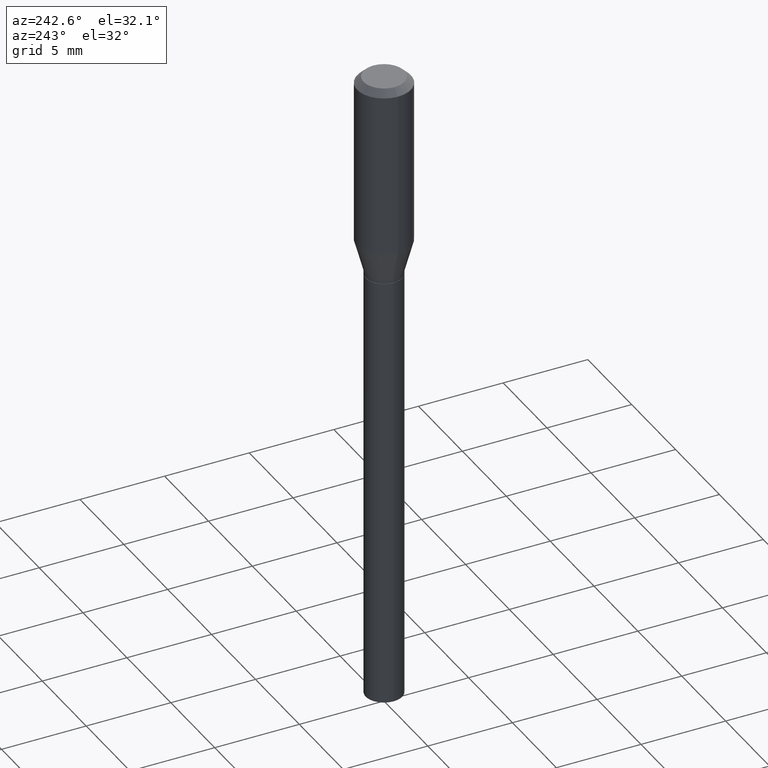
[diagram: clean part render]
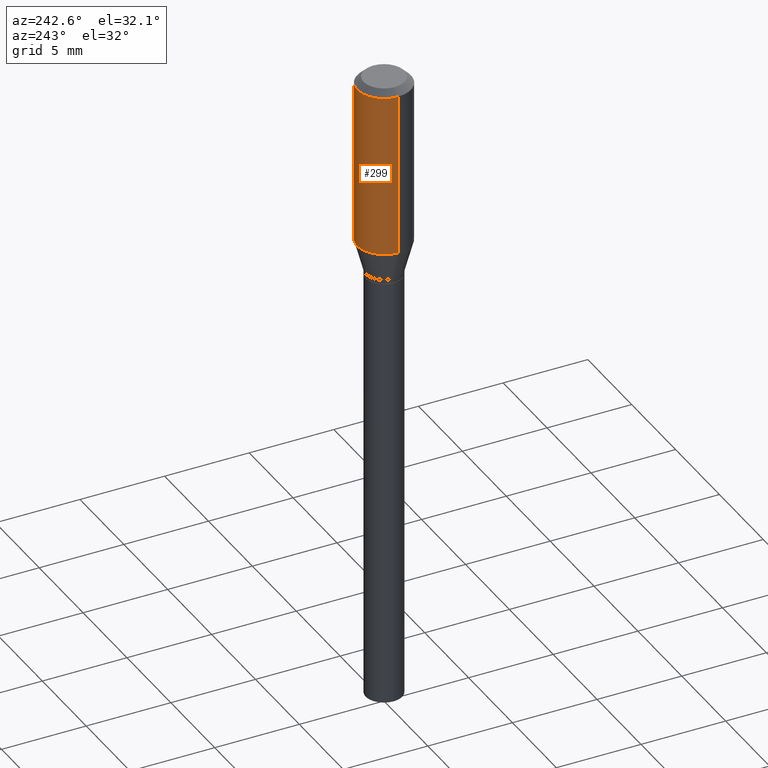
[diagram: same view with one face highlighted and labeled with its STEP entity id]
A machine part, auxiliary view. The second image highlights one B-rep face of the part: STEP entity #299.
In plain terms, the highlighted cylindrical surface (edge-blend (fillet) strip) has radius 1.5875 mm, axis along (-0, 0, 1).
Its self-contained STEP definition (entity closure, byte-faithful):
#8 = CARTESIAN_POINT ( 'NONE',  ( 0.06250000000000000000, -4.888073874380388472E-16, -0.01499999999999999944 ) ) ;
#49 = VERTEX_POINT ( 'NONE', #413 ) ;
#65 = DIRECTION ( 'NONE',  ( -2.445468806185136597E-29, 3.491481338843145583E-15, 1.000000000000000000 ) ) ;
#76 = DIRECTION ( 'NONE',  ( -2.445468806185136597E-29, 3.491481338843145583E-15, 1.000000000000000000 ) ) ;
#79 = VERTEX_POINT ( 'NONE', #8 ) ;
#100 = AXIS2_PLACEMENT_3D ( 'NONE', #105, #65, #287 ) ;
#105 = CARTESIAN_POINT ( 'NONE',  ( 3.668203209277705088E-31, -5.237222008264718399E-17, -0.01499999999999999944 ) ) ;
#106 = EDGE_CURVE ( 'NONE', #243, #125, #451, .T. ) ;
#117 = AXIS2_PLACEMENT_3D ( 'NONE', #171, #319, #461 ) ;
#125 = VERTEX_POINT ( 'NONE', #132 ) ;
#132 = CARTESIAN_POINT ( 'NONE',  ( -0.06250000000000000000, -2.722911573169879398E-16, -0.01499999999999999944 ) ) ;
#141 = EDGE_CURVE ( 'NONE', #49, #79, #382, .T. ) ;
#142 = FACE_OUTER_BOUND ( 'NONE', #245, .T. ) ;
#143 = ORIENTED_EDGE ( 'NONE', *, *, #106, .T. ) ;
#171 = CARTESIAN_POINT ( 'NONE',  ( 9.668380622468593325E-30, -1.380388514251453836E-15, -0.3953589838486224473 ) ) ;
#177 = DIRECTION ( 'NONE',  ( 1.000000000000000000, -6.982962677686266711E-15, 4.876176775795935793E-29 ) ) ;
#204 = DIRECTION ( 'NONE',  ( -2.445468806185136877E-29, 3.491481338843145188E-15, 1.000000000000000000 ) ) ;
#213 = ORIENTED_EDGE ( 'NONE', *, *, #309, .F. ) ;
#243 = VERTEX_POINT ( 'NONE', #420 ) ;
#245 = EDGE_LOOP ( 'NONE', ( #396, #143, #213, #284 ) ) ;
#254 = VECTOR ( 'NONE', #204, 39.37007874015748143 ) ;
#282 = CIRCLE ( 'NONE', #117, 0.06250000000000000000 ) ;
#284 = ORIENTED_EDGE ( 'NONE', *, *, #141, .F. ) ;
#287 = DIRECTION ( 'NONE',  ( 1.000000000000000000, -6.982962677686266711E-15, 0.000000000000000000 ) ) ;
#296 = VECTOR ( 'NONE', #390, 39.37007874015748143 ) ;
#299 = ADVANCED_FACE ( 'NONE', ( #142 ), #399, .T. ) ;
#308 = CARTESIAN_POINT ( 'NONE',  ( 0.06250000000000000000, -4.364351673553916694E-16, 3.047610484872459871E-30 ) ) ;
#309 = EDGE_CURVE ( 'NONE', #79, #125, #318, .T. ) ;
#318 = CIRCLE ( 'NONE', #100, 0.06250000000000000000 ) ;
#319 = DIRECTION ( 'NONE',  ( -2.445468806185136597E-29, 3.491481338843145583E-15, 1.000000000000000000 ) ) ;
#360 = AXIS2_PLACEMENT_3D ( 'NONE', #428, #76, #177 ) ;
#380 = CARTESIAN_POINT ( 'NONE',  ( -0.06250000000000000000, 4.440892098500626162E-16, -3.074334431409316114E-30 ) ) ;
#382 = LINE ( 'NONE', #308, #254 ) ;
#390 = DIRECTION ( 'NONE',  ( -2.445468806185136877E-29, 3.491481338843145188E-15, 1.000000000000000000 ) ) ;
#396 = ORIENTED_EDGE ( 'NONE', *, *, #409, .T. ) ;
#399 = CYLINDRICAL_SURFACE ( 'NONE', #360, 0.06250000000000000000 ) ;
#409 = EDGE_CURVE ( 'NONE', #49, #243, #282, .T. ) ;
#413 = CARTESIAN_POINT ( 'NONE',  ( 0.06250000000000000000, -1.816823681606845702E-15, -0.3953589838486224473 ) ) ;
#420 = CARTESIAN_POINT ( 'NONE',  ( -0.06250000000000000000, -9.362993044013910222E-16, -0.3953589838486224473 ) ) ;
#428 = CARTESIAN_POINT ( 'NONE',  ( 0.000000000000000000, 0.000000000000000000, 0.000000000000000000 ) ) ;
#451 = LINE ( 'NONE', #380, #296 ) ;
#461 = DIRECTION ( 'NONE',  ( 1.000000000000000000, -6.982962677686266711E-15, 0.000000000000000000 ) ) ;